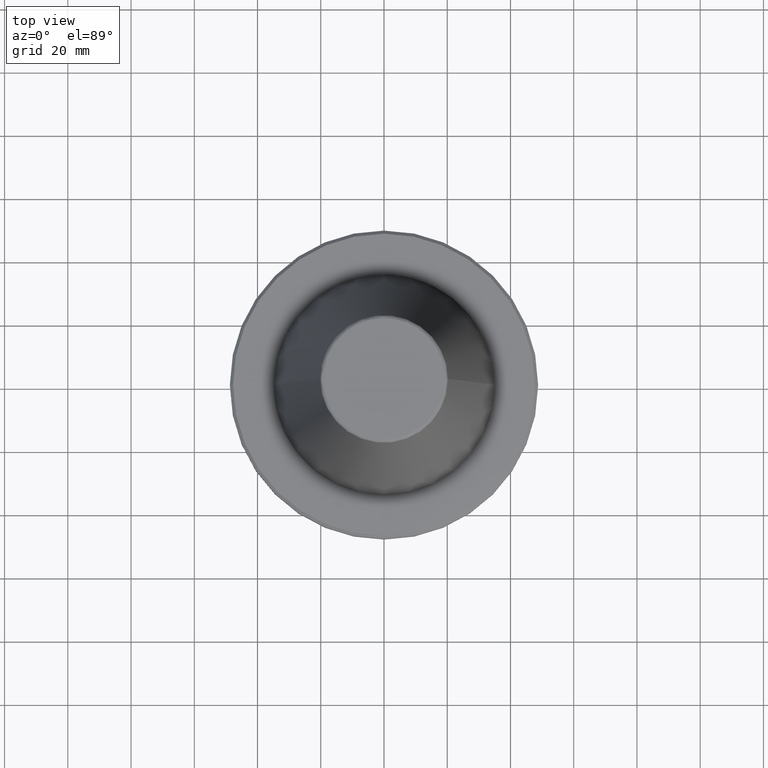
[diagram: clean part render]
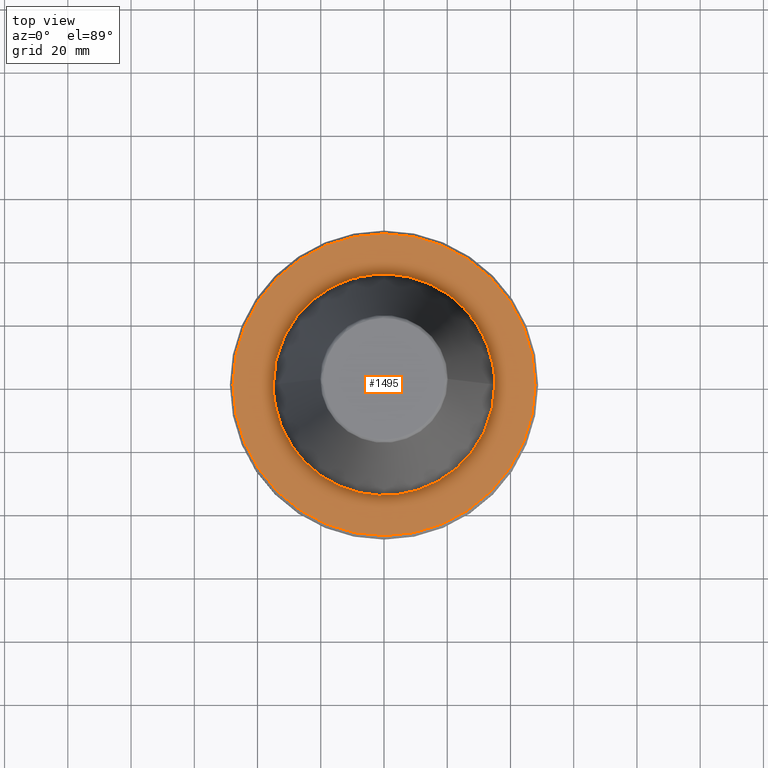
[diagram: same view with one face highlighted and labeled with its STEP entity id]
A machine part, top view. The second image highlights one B-rep face of the part: STEP entity #1495.
In plain terms, the highlighted planar face has unit normal (0, 0, 1).
Its self-contained STEP definition (entity closure, byte-faithful):
#79 = CARTESIAN_POINT ( 'NONE',  ( 32.56865578623111200, -12.81732741286599300, -3.199999999999999700 ) ) ;
#84 = CARTESIAN_POINT ( 'NONE',  ( -18.28000292855092800, -29.84963310932764500, -3.199999999999999700 ) ) ;
#86 = CARTESIAN_POINT ( 'NONE',  ( 29.33615436353597900, -19.08915049026279600, -3.200000000000001100 ) ) ;
#88 = CARTESIAN_POINT ( 'NONE',  ( -29.12859832660762600, -19.40440699317025200, -3.200000000000000600 ) ) ;
#91 = CARTESIAN_POINT ( 'NONE',  ( 13.83968161196028600, -32.14999761354120300, -3.200000000000000200 ) ) ;
#102 = CARTESIAN_POINT ( 'NONE',  ( -34.00795424931148100, -8.308886591280263200, -3.200000000000000600 ) ) ;
#104 = AXIS2_PLACEMENT_3D ( 'NONE', #472, #2318, #1406 ) ;
#106 = CARTESIAN_POINT ( 'NONE',  ( 6.856257133420490900, -34.32241613434766900, -3.199999999999999700 ) ) ;
#113 = EDGE_CURVE ( 'NONE', #2039, #1806, #1453, .T. ) ;
#116 = CARTESIAN_POINT ( 'NONE',  ( -6.333832670997710000, -34.42214089842946100, -3.200000000000000200 ) ) ;
#171 = CIRCLE ( 'NONE', #1088, 47.75000000000084600 ) ;
#189 = FACE_BOUND ( 'NONE', #862, .T. ) ;
#266 = CARTESIAN_POINT ( 'NONE',  ( 34.71393053172150900, -4.522777660849745200, -3.200000000000000600 ) ) ;
#270 = CARTESIAN_POINT ( 'NONE',  ( -9.135985986387860100, -33.82018250934229500, -3.199999999999999700 ) ) ;
#272 = CARTESIAN_POINT ( 'NONE',  ( 32.59456622067307300, -12.75129574512461700, -3.200000000000000600 ) ) ;
#279 = CARTESIAN_POINT ( 'NONE',  ( -17.39569460397837400, -30.38123465404614300, -3.200000000000000600 ) ) ;
#281 = CARTESIAN_POINT ( 'NONE',  ( 19.59265025307810100, -29.00292566127140100, -3.200000000000001100 ) ) ;
#289 = CARTESIAN_POINT ( 'NONE',  ( -29.25439692751874100, -19.21420423913502900, -3.200000000000000600 ) ) ;
#292 = CARTESIAN_POINT ( 'NONE',  ( 13.12353511134049100, -32.44661293862724700, -3.199999999999999700 ) ) ;
#296 = CARTESIAN_POINT ( 'NONE',  ( -34.22336994005453900, -7.342137192584755400, -3.200000000000000200 ) ) ;
#298 = CARTESIAN_POINT ( 'NONE',  ( 6.438461267130185700, -34.40272425953249800, -3.199999999999999700 ) ) ;
#330 = ORIENTED_EDGE ( 'NONE', *, *, #1492, .T. ) ;
#333 = AXIS2_PLACEMENT_3D ( 'NONE', #2123, #2312, #2349 ) ;
#341 = VERTEX_POINT ( 'NONE', #1487 ) ;
#438 = CARTESIAN_POINT ( 'NONE',  ( 34.45762826542811300, -6.138388980637482300, -3.200000000000000600 ) ) ;
#442 = FACE_OUTER_BOUND ( 'NONE', #1440, .T. ) ;
#445 = CARTESIAN_POINT ( 'NONE',  ( -11.02286519849236900, -33.22762448501621400, -3.200000000000000200 ) ) ;
#448 = CARTESIAN_POINT ( 'NONE',  ( 32.55619322207754600, -12.84895367128201500, -3.200000000000000200 ) ) ;
#453 = CARTESIAN_POINT ( 'NONE',  ( -19.08915049026184700, -29.33615436353641900, -3.200000000000000600 ) ) ;
#455 = CARTESIAN_POINT ( 'NONE',  ( 22.55445595765087700, -26.81177841650848100, -3.200000000000001500 ) ) ;
#463 = CARTESIAN_POINT ( 'NONE',  ( -31.73425127810394000, -14.78401017754392500, -3.200000000000000600 ) ) ;
#464 = CARTESIAN_POINT ( 'NONE',  ( 13.02066417721918300, -32.48790124032010600, -3.200000000000000600 ) ) ;
#472 = CARTESIAN_POINT ( 'NONE',  ( 0.0000000000000000000, 0.0000000000000000000, -3.200000000000000200 ) ) ;
#473 = CARTESIAN_POINT ( 'NONE',  ( -34.36977381871909600, -6.612690763914757900, -3.200000000000000600 ) ) ;
#478 = CARTESIAN_POINT ( 'NONE',  ( -1.070209459185427600, -35.00001621622374900, -3.200000000000001500 ) ) ;
#620 = CARTESIAN_POINT ( 'NONE',  ( 35.00000000000000000, 0.0000000000000000000, -3.200000000000000600 ) ) ;
#623 = CARTESIAN_POINT ( 'NONE',  ( 35.00000000000001400, 2.140949734381700300, -3.200000000000000600 ) ) ;
#624 = CARTESIAN_POINT ( 'NONE',  ( 34.80522929819336800, 4.263852012523358300, -3.200000000000000200 ) ) ;
#625 = CARTESIAN_POINT ( 'NONE',  ( 34.40960131014864500, 6.401595191017278800, -3.200000000000000600 ) ) ;
#628 = CARTESIAN_POINT ( 'NONE',  ( 34.40272425953227000, 6.438461267130299400, -3.199999999999999700 ) ) ;
#629 = CARTESIAN_POINT ( 'NONE',  ( 34.38960595214368300, 6.508170961267745200, -3.199999999999999300 ) ) ;
#633 = CARTESIAN_POINT ( 'NONE',  ( 34.36977381872005600, 6.612690763906142500, -3.200000000000000200 ) ) ;
#637 = CARTESIAN_POINT ( 'NONE',  ( 34.32241613434633400, 6.856257133421256500, -3.200000000000000200 ) ) ;
#638 = CARTESIAN_POINT ( 'NONE',  ( 34.22336994005794300, 7.342137192553624700, -3.200000000000000200 ) ) ;
#639 = CARTESIAN_POINT ( 'NONE',  ( 34.00795424931733600, 8.308886591226912100, -3.200000000000001100 ) ) ;
#640 = CARTESIAN_POINT ( 'NONE',  ( 33.50782965918070000, 10.22234251020762700, -3.199999999999999700 ) ) ;
#644 = CARTESIAN_POINT ( 'NONE',  ( 32.96036308136864100, 11.82808836356392300, -3.199999999999999700 ) ) ;
#647 = CARTESIAN_POINT ( 'NONE',  ( 32.52953514517933100, 12.91629066188748200, -3.200000000000001100 ) ) ;
#649 = CARTESIAN_POINT ( 'NONE',  ( 32.51532341133770400, 12.95202981245260600, -3.200000000000000600 ) ) ;
#650 = CARTESIAN_POINT ( 'NONE',  ( 34.42214089842926900, -6.333832670998722500, -3.199999999999999700 ) ) ;
#651 = CARTESIAN_POINT ( 'NONE',  ( 32.48790124032222300, 13.02066417721462900, -3.200000000000000200 ) ) ;
#652 = CARTESIAN_POINT ( 'NONE',  ( 32.44661293863091300, 13.12353511133261600, -3.200000000000000600 ) ) ;
#655 = CARTESIAN_POINT ( 'NONE',  ( 32.34918825184107000, 13.36300299976604200, -3.200000000000001100 ) ) ;
#657 = CARTESIAN_POINT ( 'NONE',  ( 32.14999761355444000, 13.83968161193186200, -3.200000000000000200 ) ) ;
#658 = CARTESIAN_POINT ( 'NONE',  ( -12.42068019836582900, -32.72251864197144000, -3.200000000000001500 ) ) ;
#659 = CARTESIAN_POINT ( 'NONE',  ( 31.73425127815324800, 14.78401017745958900, -3.199999999999999300 ) ) ;
#660 = CARTESIAN_POINT ( 'NONE',  ( 31.37487172763907900, -15.59116830087131700, -3.200000000000001100 ) ) ;
#661 = CARTESIAN_POINT ( 'NONE',  ( 30.83329837203913100, 16.63655267329933100, -3.200000000000000600 ) ) ;
#662 = CARTESIAN_POINT ( 'NONE',  ( 29.94197833483552200, 18.16253543793493800, -3.199999999999999300 ) ) ;
#663 = CARTESIAN_POINT ( 'NONE',  ( 29.25439692751638500, 19.21420423913906100, -3.200000000000000200 ) ) ;
#666 = CARTESIAN_POINT ( 'NONE',  ( 29.21200324985845900, 19.27860445471553800, -3.200000000000001100 ) ) ;
#667 = CARTESIAN_POINT ( 'NONE',  ( -19.02846970913748200, -29.37554792988932900, -3.199999999999998800 ) ) ;
#670 = CARTESIAN_POINT ( 'NONE',  ( 19.21420423913673800, -29.25439692751747200, -3.200000000000000600 ) ) ;
#671 = CARTESIAN_POINT ( 'NONE',  ( 29.12859832661076400, 19.40440699316710000, -3.200000000000000200 ) ) ;
#672 = CARTESIAN_POINT ( 'NONE',  ( 29.00292566128584700, 19.59265025306045900, -3.200000000000000200 ) ) ;
#674 = CARTESIAN_POINT ( 'NONE',  ( 28.70573247902078500, 20.02866069165706600, -3.200000000000000200 ) ) ;
#680 = CARTESIAN_POINT ( 'NONE',  ( -32.34918825182566600, -13.36300299979238400, -3.200000000000000200 ) ) ;
#682 = DIRECTION ( 'NONE',  ( -0.0000000000000000000, -0.0000000000000000000, 1.000000000000000000 ) ) ;
#684 = CARTESIAN_POINT ( 'NONE',  ( 12.91629066188754700, -32.52953514517923800, -3.200000000000000600 ) ) ;
#685 = CARTESIAN_POINT ( 'NONE',  ( 28.09551826179633900, 20.88778623089868700, -3.200000000000000200 ) ) ;
#686 = CARTESIAN_POINT ( 'NONE',  ( 26.81177841657013900, 22.55445595757559800, -3.200000000000000200 ) ) ;
#689 = CARTESIAN_POINT ( 'NONE',  ( 25.60289613075804000, 23.89460483448777900, -3.200000000000000200 ) ) ;
#693 = CARTESIAN_POINT ( 'NONE',  ( 23.04041976307144100, 26.45700235561194100, -3.199999999999999700 ) ) ;
#694 = CARTESIAN_POINT ( 'NONE',  ( -34.40272425953199300, -6.438461267132821900, -3.200000000000001100 ) ) ;
#696 = CARTESIAN_POINT ( 'NONE',  ( -4.522662636201488300, -34.71395181551518000, -3.200000000000000200 ) ) ;
#698 = CARTESIAN_POINT ( 'NONE',  ( 21.17444947147954100, 27.97287582435764400, -3.200000000000000600 ) ) ;
#701 = CARTESIAN_POINT ( 'NONE',  ( 19.08915049026126100, 29.33615436353701600, -3.199999999999999300 ) ) ;
#702 = CARTESIAN_POINT ( 'NONE',  ( 19.02846970913313700, 29.37554792989258000, -3.199999999999999700 ) ) ;
#704 = CARTESIAN_POINT ( 'NONE',  ( 18.90427742787639400, 29.45563184199051700, -3.200000000000000200 ) ) ;
#705 = CARTESIAN_POINT ( 'NONE',  ( 18.71766838408140600, 29.57513658499558300, -3.200000000000000600 ) ) ;
#706 = CARTESIAN_POINT ( 'NONE',  ( 18.28000292852387400, 29.84963310934783100, -3.200000000000000200 ) ) ;
#710 = CARTESIAN_POINT ( 'NONE',  ( 17.39569460393197900, 30.38123465408075700, -3.200000000000000200 ) ) ;
#712 = CARTESIAN_POINT ( 'NONE',  ( 15.59116830084095000, 31.37487172766022800, -3.199999999999999700 ) ) ;
#714 = CARTESIAN_POINT ( 'NONE',  ( 13.98287206292189900, 32.10730462063747100, -3.200000000000000600 ) ) ;
#715 = CARTESIAN_POINT ( 'NONE',  ( 12.84895367128254200, 32.55619322207718400, -3.200000000000000200 ) ) ;
#716 = CARTESIAN_POINT ( 'NONE',  ( 12.81732741286386600, 32.56865578623165900, -3.200000000000001100 ) ) ;
#721 = CARTESIAN_POINT ( 'NONE',  ( 12.75129574512042500, 32.59456622067411800, -3.200000000000000200 ) ) ;
#723 = CARTESIAN_POINT ( 'NONE',  ( 12.65220399756351800, 32.63327705773371400, -3.200000000000000200 ) ) ;
#725 = CARTESIAN_POINT ( 'NONE',  ( 12.42068019833845600, 32.72251864197743000, -3.200000000000000200 ) ) ;
#726 = CARTESIAN_POINT ( 'NONE',  ( 11.95639371351929900, 32.89666700154990800, -3.199999999999999700 ) ) ;
#732 = CARTESIAN_POINT ( 'NONE',  ( 11.02286519840483300, 33.22762448503527100, -3.200000000000000200 ) ) ;
#734 = CARTESIAN_POINT ( 'NONE',  ( 9.135985986271153400, 33.82018250936771200, -3.199999999999999700 ) ) ;
#735 = CARTESIAN_POINT ( 'NONE',  ( 7.484680064034233900, 34.20919177141554000, -3.199999999999999700 ) ) ;
#736 = CARTESIAN_POINT ( 'NONE',  ( 6.333832670999783000, 34.42214089842899900, -3.200000000000000600 ) ) ;
#738 = CARTESIAN_POINT ( 'NONE',  ( 6.302909256718462100, 34.42781451759762500, -3.199999999999999300 ) ) ;
#741 = CARTESIAN_POINT ( 'NONE',  ( 6.237098849441338200, 34.43979846253830600, -3.199999999999999700 ) ) ;
#745 = CARTESIAN_POINT ( 'NONE',  ( 6.138370408955123200, 34.45763170187248600, -3.200000000000000600 ) ) ;
#746 = CARTESIAN_POINT ( 'NONE',  ( 5.907914240827012400, 34.49824384711439500, -3.199999999999999700 ) ) ;
#750 = CARTESIAN_POINT ( 'NONE',  ( 5.446642676596225000, 34.57547315144680800, -3.200000000000000600 ) ) ;
#754 = CARTESIAN_POINT ( 'NONE',  ( 4.522662636236486100, 34.71395181550598600, -3.199999999999999300 ) ) ;
#758 = CARTESIAN_POINT ( 'NONE',  ( 2.668954907924300900, 34.92698936520180600, -3.199999999999999700 ) ) ;
#761 = CARTESIAN_POINT ( 'NONE',  ( 1.070209459212092300, 35.00001621621675700, -3.200000000000001100 ) ) ;
#763 = CARTESIAN_POINT ( 'NONE',  ( -2.140418918424168600, 34.99996756756655000, -3.200000000000000600 ) ) ;
#766 = CARTESIAN_POINT ( 'NONE',  ( -4.264027316417490000, 34.80519685506052200, -3.200000000000000200 ) ) ;
#767 = CARTESIAN_POINT ( 'NONE',  ( -6.401592451893932900, 34.40960181707260500, -3.199999999999999700 ) ) ;
#769 = CARTESIAN_POINT ( 'NONE',  ( -6.438461267135233300, 34.40272425953072900, -3.200000000000000200 ) ) ;
#773 = CARTESIAN_POINT ( 'NONE',  ( -6.508170961277508000, 34.38960595214063400, -3.199999999999999700 ) ) ;
#774 = CARTESIAN_POINT ( 'NONE',  ( -6.612690763923023200, 34.36977381871476900, -3.200000000000000200 ) ) ;
#775 = CARTESIAN_POINT ( 'NONE',  ( -6.856257133453938800, 34.32241613433611600, -3.200000000000001100 ) ) ;
#776 = CARTESIAN_POINT ( 'NONE',  ( -7.342137192614635500, 34.22336994003888600, -3.200000000000000200 ) ) ;
#777 = CARTESIAN_POINT ( 'NONE',  ( -8.308886591331488000, 34.00795424928465100, -3.200000000000000600 ) ) ;
#780 = CARTESIAN_POINT ( 'NONE',  ( -10.22234251034705100, 33.50782965913711600, -3.200000000000000200 ) ) ;
#784 = CARTESIAN_POINT ( 'NONE',  ( -11.82808836364358700, 32.96036308134373600, -3.199999999999999700 ) ) ;
#786 = CARTESIAN_POINT ( 'NONE',  ( -12.91629066188498200, 32.52953514518012000, -3.200000000000000200 ) ) ;
#787 = CARTESIAN_POINT ( 'NONE',  ( -12.95202981245626000, 32.51532341133582800, -3.199999999999999700 ) ) ;
#788 = CARTESIAN_POINT ( 'NONE',  ( -13.02066417722185500, 32.48790124031850700, -3.200000000000000200 ) ) ;
#791 = CARTESIAN_POINT ( 'NONE',  ( -13.12353511134512400, 32.44661293862448300, -3.200000000000000200 ) ) ;
#793 = CARTESIAN_POINT ( 'NONE',  ( -13.36300299979023100, 32.34918825182865700, -3.199999999999999700 ) ) ;
#795 = CARTESIAN_POINT ( 'NONE',  ( -13.83968161197703100, 32.14999761353126200, -3.200000000000000200 ) ) ;
#796 = EDGE_CURVE ( 'NONE', #341, #1755, #975, .T. ) ;
#797 = CARTESIAN_POINT ( 'NONE',  ( -14.78401017753703600, 31.73425127811351500, -3.200000000000001500 ) ) ;
#804 = CARTESIAN_POINT ( 'NONE',  ( -16.63655267340255200, 30.83329837198616000, -3.200000000000001100 ) ) ;
#810 = CARTESIAN_POINT ( 'NONE',  ( -18.16253543799391000, 29.94197833480527700, -3.200000000000000600 ) ) ;
#811 = CARTESIAN_POINT ( 'NONE',  ( -19.21420423913537700, 29.25439692751829300, -3.200000000000001100 ) ) ;
#814 = CARTESIAN_POINT ( 'NONE',  ( -19.27860445472269300, 29.21200324985276000, -3.200000000000000600 ) ) ;
#819 = CARTESIAN_POINT ( 'NONE',  ( -19.40440699318107300, 29.12859832659959000, -3.200000000000000200 ) ) ;
#821 = CARTESIAN_POINT ( 'NONE',  ( -19.59265025308431900, 29.00292566126676500, -3.199999999999999300 ) ) ;
#824 = CARTESIAN_POINT ( 'NONE',  ( -20.02866069170161700, 28.70573247898518700, -3.200000000000001100 ) ) ;
#827 = CARTESIAN_POINT ( 'NONE',  ( -20.88778623097507000, 28.09551826173528600, -3.200000000000001100 ) ) ;
#830 = CARTESIAN_POINT ( 'NONE',  ( -47.75000000000084600, 0.0000000000000000000, -3.199999999999869600 ) ) ;
#831 = CARTESIAN_POINT ( 'NONE',  ( -22.55445595767743000, 26.81177841648872800, -3.200000000000000200 ) ) ;
#835 = CARTESIAN_POINT ( 'NONE',  ( -23.89460483454596200, 25.60289613071151700, -3.199999999999999700 ) ) ;
#837 = CARTESIAN_POINT ( 'NONE',  ( -26.45700235549554300, 23.04041976316449700, -3.200000000000000200 ) ) ;
#838 = CARTESIAN_POINT ( 'NONE',  ( -27.97287582442092500, 21.17444947139290100, -3.200000000000000600 ) ) ;
#842 = CARTESIAN_POINT ( 'NONE',  ( -29.33615436353504800, 19.08915049026396100, -3.200000000000000200 ) ) ;
#844 = CARTESIAN_POINT ( 'NONE',  ( -29.37554792989231300, 19.02846970913294200, -3.200000000000000600 ) ) ;
#846 = CARTESIAN_POINT ( 'NONE',  ( -29.45563184198997300, 18.90427742787601100, -3.199999999999999700 ) ) ;
#848 = CARTESIAN_POINT ( 'NONE',  ( -29.57513658499466700, 18.71766838408074600, -3.200000000000000200 ) ) ;
#851 = CARTESIAN_POINT ( 'NONE',  ( -29.84963310934612200, 18.28000292852267300, -3.200000000000000200 ) ) ;
#854 = CARTESIAN_POINT ( 'NONE',  ( -30.38123465407781200, 17.39569460392992200, -3.199999999999998800 ) ) ;
#856 = CARTESIAN_POINT ( 'NONE',  ( -31.37487172765630900, 15.59116830083820700, -3.199999999999999700 ) ) ;
#860 = CARTESIAN_POINT ( 'NONE',  ( -32.10730462063523300, 13.98287206292032200, -3.200000000000000200 ) ) ;
#861 = CARTESIAN_POINT ( 'NONE',  ( -32.55619322207724100, 12.84895367128259600, -3.200000000000000200 ) ) ;
#862 = EDGE_LOOP ( 'NONE', ( #1525, #983 ) ) ;
#863 = CARTESIAN_POINT ( 'NONE',  ( -32.56865578623123300, 12.81732741286531400, -3.200000000000000200 ) ) ;
#866 = CARTESIAN_POINT ( 'NONE',  ( -32.59456622067332200, 12.75129574512329000, -3.200000000000000200 ) ) ;
#869 = CARTESIAN_POINT ( 'NONE',  ( -32.63327705773234300, 12.65220399756846900, -3.199999999999999700 ) ) ;
#871 = CARTESIAN_POINT ( 'NONE',  ( -32.72251864197475200, 12.42068019834804300, -3.200000000000000600 ) ) ;
#873 = CARTESIAN_POINT ( 'NONE',  ( -32.89666700154491300, 11.95639371353719200, -3.200000000000000200 ) ) ;
#874 = CARTESIAN_POINT ( 'NONE',  ( -33.22762448502673000, 11.02286519843548100, -3.199999999999999300 ) ) ;
#877 = CARTESIAN_POINT ( 'NONE',  ( 34.42781351200216000, -6.302914691289109900, -3.199999999999999300 ) ) ;
#878 = CARTESIAN_POINT ( 'NONE',  ( -33.82018250935632900, 9.135985986312031000, -3.200000000000000600 ) ) ;
#882 = CARTESIAN_POINT ( 'NONE',  ( -34.20919177140901000, 7.484680064057585900, -3.200000000000000200 ) ) ;
#885 = CARTESIAN_POINT ( 'NONE',  ( -34.42214089842920500, 6.333832670999061800, -3.199999999999999700 ) ) ;
#886 = CARTESIAN_POINT ( 'NONE',  ( -12.75129574512861600, -32.59456622067233400, -3.200000000000000200 ) ) ;
#888 = CARTESIAN_POINT ( 'NONE',  ( 29.84963310933858300, -18.28000292853714400, -3.200000000000000600 ) ) ;
#889 = CARTESIAN_POINT ( 'NONE',  ( -34.42781351200215300, 6.302914691289114300, -3.200000000000000200 ) ) ;
#890 = CARTESIAN_POINT ( 'NONE',  ( -34.43979647510159500, 6.237109590206945800, -3.200000000000001100 ) ) ;
#894 = CARTESIAN_POINT ( 'NONE',  ( -34.45762826542809200, 6.138388980637486700, -3.200000000000000600 ) ) ;
#898 = CARTESIAN_POINT ( 'NONE',  ( -26.81177841654718800, -22.55445595759855200, -3.200000000000001100 ) ) ;
#899 = CARTESIAN_POINT ( 'NONE',  ( -34.49823719593175000, 5.907950186018663200, -3.200000000000000600 ) ) ;
#901 = CARTESIAN_POINT ( 'NONE',  ( 19.27860445472082400, -29.21200324985414900, -3.200000000000002000 ) ) ;
#903 = CARTESIAN_POINT ( 'NONE',  ( -34.57546073590584300, 5.446709774287301200, -3.199999999999999700 ) ) ;
#906 = CARTESIAN_POINT ( 'NONE',  ( -34.71393053172149500, 4.522777660849747000, -3.199999999999999700 ) ) ;
#909 = CARTESIAN_POINT ( 'NONE',  ( -32.14999761352568400, -13.83968161198105500, -3.199999999999999700 ) ) ;
#910 = CARTESIAN_POINT ( 'NONE',  ( -34.92696098682252200, 2.669108274075320700, -3.200000000000000200 ) ) ;
#912 = CARTESIAN_POINT ( 'NONE',  ( 6.508170961267519600, -34.38960595214408000, -3.200000000000000200 ) ) ;
#917 = CARTESIAN_POINT ( 'NONE',  ( -34.80522929819336000, -4.263852012492216100, -3.199999999999999700 ) ) ;
#918 = CARTESIAN_POINT ( 'NONE',  ( -35.00000000000000000, 4.286263797015737300E-015, -3.200000000000000600 ) ) ;
#921 = CARTESIAN_POINT ( 'NONE',  ( -5.907914240816079900, -34.49824384711726600, -3.199999999999999700 ) ) ;
#947 = CARTESIAN_POINT ( 'NONE',  ( -35.00000000000001400, 1.070297097012678800, -3.200000000000000600 ) ) ;
#949 = PLANE ( 'NONE',  #104 ) ;
#975 = B_SPLINE_CURVE_WITH_KNOTS ( 'NONE', 3,
 ( #918, #947, #910, #906, #903, #899, #894, #890, #889, #885, #882, #878, #874, #873, #871, #869, #866, #863, #861, #860, #856, #854, #851, #848, #846, #844, #842, #838, #837, #835, #831, #827, #824, #821, #819, #814, #811, #810, #804, #797, #795, #793, #791, #788, #787, #786, #784, #780, #777, #776, #775, #774, #773, #769, #767, #766, #763, #761, #758, #754, #750, #746, #745, #741, #738, #736, #735, #734, #732, #726, #725, #723, #721, #716, #715, #714, #712, #710, #706, #705, #704, #702, #701, #698, #693, #689, #686, #685, #674, #672, #671, #666, #663, #662, #661, #659, #657, #655, #652, #651, #649, #647, #644, #640, #639, #638, #637, #633, #629, #628, #625, #624, #623, #620 ),
 .UNSPECIFIED., .F., .F.,
 ( 4, 1, 1, 1, 1, 1, 2, 2, 1, 1, 1, 1, 1, 2, 2, 1, 1, 1, 1, 2, 2, 2, 1, 1, 1, 1, 2, 2, 1, 1, 1, 1, 1, 2, 2, 1, 1, 1, 1, 1, 2, 2, 2, 1, 1, 1, 1, 1, 2, 2, 1, 1, 1, 1, 1, 2, 2, 1, 1, 1, 1, 2, 2, 2, 1, 1, 1, 1, 2, 2, 1, 1, 1, 1, 1, 2, 2, 1, 1, 1, 1, 1, 2, 2, 4 ),
 ( 0.0000000000000000000, 0.03124999999999877200, 0.04687499999999816100, 0.05468749999999786300, 0.05859374999999769600, 0.06054687499999759900, 0.06152343749999752300, 0.06249999999999744000, 0.09374999999999490700, 0.1093749999999936000, 0.1171874999999929600, 0.1210937499999926600, 0.1230468749999925300, 0.1240234374999925100, 0.1249999999999924800, 0.1562499999999923900, 0.1718749999999923100, 0.1796874999999922600, 0.1835937499999922000, 0.1855468749999921500, 0.1874999999999921200, 0.2499999999999907300, 0.2812499999999900600, 0.2968749999999897300, 0.3046874999999895600, 0.3085937499999895600, 0.3105468749999895600, 0.3124999999999896200, 0.3437499999999892300, 0.3593749999999890600, 0.3671874999999890100, 0.3710937499999889500, 0.3730468749999889500, 0.3740234374999889500, 0.3749999999999889500, 0.4062499999999907900, 0.4218749999999916700, 0.4296874999999921200, 0.4335937499999923400, 0.4355468749999924500, 0.4365234374999925100, 0.4374999999999925600, 0.4999999999999948900, 0.5312499999999961100, 0.5468749999999966700, 0.5546874999999970000, 0.5585937499999971100, 0.5605468749999972200, 0.5615234374999971100, 0.5624999999999971100, 0.5937499999999980000, 0.6093749999999983300, 0.6171874999999986700, 0.6210937499999986700, 0.6230468749999986700, 0.6240234374999987800, 0.6249999999999988900, 0.6562499999999993300, 0.6718749999999995600, 0.6796874999999995600, 0.6835937499999996700, 0.6855468749999996700, 0.6874999999999997800, 0.7500000000000016700, 0.7812500000000026600, 0.7968750000000032200, 0.8046875000000034400, 0.8085937500000036600, 0.8105468750000036600, 0.8125000000000036600, 0.8437500000000036600, 0.8593750000000037700, 0.8671875000000037700, 0.8710937500000038900, 0.8730468750000037700, 0.8740234375000037700, 0.8750000000000036600, 0.9062500000000028900, 0.9218750000000024400, 0.9296875000000022200, 0.9335937500000021100, 0.9355468750000020000, 0.9365234375000018900, 0.9375000000000018900, 1.000000000000000000 ),
 .UNSPECIFIED. ) ;
#983 = ORIENTED_EDGE ( 'NONE', *, *, #2286, .T. ) ;
#1045 = CARTESIAN_POINT ( 'NONE',  ( 47.75000000000084600, 5.908920805886082900E-015, -3.199999999999869600 ) ) ;
#1075 = CARTESIAN_POINT ( 'NONE',  ( 34.20919177140704200, -7.484680064068328400, -3.200000000000001100 ) ) ;
#1080 = CARTESIAN_POINT ( 'NONE',  ( -13.98287206295725200, -32.10730462061110300, -3.200000000000000200 ) ) ;
#1085 = CARTESIAN_POINT ( 'NONE',  ( 29.37554792989109500, -19.02846970913526900, -3.200000000000000600 ) ) ;
#1087 = CARTESIAN_POINT ( 'NONE',  ( -28.09551826177911600, -20.88778623091590700, -3.200000000000000600 ) ) ;
#1088 = AXIS2_PLACEMENT_3D ( 'NONE', #1796, #682, #2036 ) ;
#1090 = CARTESIAN_POINT ( 'NONE',  ( 18.16253543797202500, -29.94197833481824500, -3.200000000000000600 ) ) ;
#1102 = CARTESIAN_POINT ( 'NONE',  ( -32.52953514517947300, -12.91629066188620600, -3.200000000000001500 ) ) ;
#1105 = CARTESIAN_POINT ( 'NONE',  ( 7.342137192552193000, -34.22336994006042900, -3.199999999999999700 ) ) ;
#1115 = CARTESIAN_POINT ( 'NONE',  ( -6.138370408949490400, -34.45763170187397900, -3.200000000000000600 ) ) ;
#1219 = B_SPLINE_CURVE_WITH_KNOTS ( 'NONE', 3,
 ( #1644, #1815, #1462, #266, #1654, #1831, #438, #1997, #877, #650, #1075, #2275, #1471, #1262, #2141, #1662, #272, #79, #448, #1837, #660, #2006, #888, #2143, #2282, #1085, #86, #1480, #1271, #1671, #455, #2014, #1847, #281, #2151, #901, #670, #1090, #2294, #1281, #91, #1486, #292, #464, #1681, #684, #2020, #1858, #2156, #1105, #106, #2301, #912, #298, #1496, #1291, #1688, #478, #1866, #696, #2026, #921, #1115, #2165, #1299, #116, #2310, #270, #445, #1835, #658, #2004, #886, #2142, #1268, #1080, #2279, #279, #84, #1477, #1667, #667, #453, #1843, #2149, #2012, #898, #1087, #2291, #1277, #88, #1485, #289, #1853, #1679, #463, #909, #680, #2018, #2298, #2153, #1102, #1494, #1289, #102, #296, #1685, #473, #1864, #694, #2024, #917, #2309, #2164 ),
 .UNSPECIFIED., .F., .F.,
 ( 4, 1, 1, 1, 1, 1, 2, 2, 1, 1, 1, 1, 1, 2, 2, 1, 1, 1, 1, 2, 2, 2, 1, 1, 1, 1, 2, 2, 1, 1, 1, 1, 1, 2, 2, 1, 1, 1, 1, 1, 2, 2, 2, 1, 1, 1, 1, 1, 2, 2, 1, 1, 1, 1, 1, 2, 2, 1, 1, 1, 1, 2, 2, 2, 1, 1, 1, 1, 2, 2, 1, 1, 1, 1, 1, 2, 2, 1, 1, 1, 1, 1, 2, 2, 4 ),
 ( 0.0000000000000000000, 0.03124999999999995100, 0.04687499999999993100, 0.05468749999999993100, 0.05859374999999991000, 0.06054687499999991000, 0.06152343749999988200, 0.06249999999999985400, 0.09374999999999808500, 0.1093749999999971400, 0.1171874999999966800, 0.1210937499999964600, 0.1230468749999963800, 0.1240234374999963800, 0.1249999999999963800, 0.1562499999999951400, 0.1718749999999945000, 0.1796874999999942300, 0.1835937499999940600, 0.1855468749999939500, 0.1874999999999938400, 0.2499999999999893400, 0.2812499999999871200, 0.2968749999999860100, 0.3046874999999854000, 0.3085937499999851200, 0.3105468749999850100, 0.3124999999999849000, 0.3437499999999827400, 0.3593749999999816300, 0.3671874999999811300, 0.3710937499999808500, 0.3730468749999806300, 0.3740234374999805700, 0.3749999999999805200, 0.4062499999999794100, 0.4218749999999788500, 0.4296874999999785700, 0.4335937499999784600, 0.4355468749999784100, 0.4365234374999784100, 0.4374999999999784100, 0.4999999999999781300, 0.5312499999999780200, 0.5468749999999779100, 0.5546874999999779100, 0.5585937499999779100, 0.5605468749999779100, 0.5615234374999779100, 0.5624999999999779100, 0.5937499999999764600, 0.6093749999999755800, 0.6171874999999752400, 0.6210937499999750200, 0.6230468749999749100, 0.6240234374999749100, 0.6249999999999749100, 0.6562499999999756900, 0.6718749999999761300, 0.6796874999999762400, 0.6835937499999764600, 0.6855468749999765700, 0.6874999999999766900, 0.7499999999999799000, 0.7812499999999814600, 0.7968749999999823500, 0.8046874999999827900, 0.8085937499999830100, 0.8105468749999831200, 0.8124999999999832400, 0.8437499999999857900, 0.8593749999999871200, 0.8671874999999877900, 0.8710937499999881200, 0.8730468749999883400, 0.8740234374999884500, 0.8749999999999885600, 0.9062499999999917800, 0.9218749999999934500, 0.9296874999999942300, 0.9335937499999946700, 0.9355468749999948900, 0.9365234374999950000, 0.9374999999999951200, 1.000000000000000000 ),
 .UNSPECIFIED. ) ;
#1262 = CARTESIAN_POINT ( 'NONE',  ( 32.89666700154338500, -11.95639371354541900, -3.200000000000000600 ) ) ;
#1268 = CARTESIAN_POINT ( 'NONE',  ( -12.84895367128145700, -32.55619322207798700, -3.200000000000000200 ) ) ;
#1271 = CARTESIAN_POINT ( 'NONE',  ( 26.45700235552588400, -23.04041976314191200, -3.199999999999999300 ) ) ;
#1277 = CARTESIAN_POINT ( 'NONE',  ( -29.00292566128046800, -19.59265025306582700, -3.200000000000000600 ) ) ;
#1281 = CARTESIAN_POINT ( 'NONE',  ( 14.78401017750829600, -31.73425127813054300, -3.199999999999999700 ) ) ;
#1289 = CARTESIAN_POINT ( 'NONE',  ( -33.50782965917290600, -10.22234251027873800, -3.199999999999999700 ) ) ;
#1291 = CARTESIAN_POINT ( 'NONE',  ( 4.264027316360163400, -34.80519685504652500, -3.200000000000000200 ) ) ;
#1299 = CARTESIAN_POINT ( 'NONE',  ( -6.302909256716819900, -34.42781451759805800, -3.199999999999999300 ) ) ;
#1406 = DIRECTION ( 'NONE',  ( 1.000000000000000000, 0.0000000000000000000, -0.0000000000000000000 ) ) ;
#1440 = EDGE_LOOP ( 'NONE', ( #2091, #330 ) ) ;
#1453 = CIRCLE ( 'NONE', #333, 47.75000000000084600 ) ;
#1462 = CARTESIAN_POINT ( 'NONE',  ( 34.92696098682253600, -2.669108274075315400, -3.200000000000001100 ) ) ;
#1471 = CARTESIAN_POINT ( 'NONE',  ( 33.22762448502411600, -11.02286519844958000, -3.200000000000000200 ) ) ;
#1477 = CARTESIAN_POINT ( 'NONE',  ( -18.71766838409589400, -29.57513658498475500, -3.200000000000000600 ) ) ;
#1480 = CARTESIAN_POINT ( 'NONE',  ( 27.97287582439135500, -21.17444947143025800, -3.200000000000000200 ) ) ;
#1485 = CARTESIAN_POINT ( 'NONE',  ( -29.21200324985685300, -19.27860445471714700, -3.200000000000000600 ) ) ;
#1486 = CARTESIAN_POINT ( 'NONE',  ( 13.36300299978126000, -32.34918825183396500, -3.200000000000000600 ) ) ;
#1487 = CARTESIAN_POINT ( 'NONE',  ( -35.00000000000000000, 4.286263797015737300E-015, -3.200000000000000600 ) ) ;
#1492 = EDGE_CURVE ( 'NONE', #1806, #2039, #171, .T. ) ;
#1494 = CARTESIAN_POINT ( 'NONE',  ( -32.96036308136418600, -11.82808836360453800, -3.200000000000000600 ) ) ;
#1495 = ADVANCED_FACE ( 'NONE', ( #189, #442 ), #949, .T. ) ;
#1496 = CARTESIAN_POINT ( 'NONE',  ( 6.401592451894831700, -34.40960181707281900, -3.199999999999999700 ) ) ;
#1525 = ORIENTED_EDGE ( 'NONE', *, *, #796, .T. ) ;
#1644 = CARTESIAN_POINT ( 'NONE',  ( 35.00000000000000000, 0.0000000000000000000, -3.200000000000000600 ) ) ;
#1654 = CARTESIAN_POINT ( 'NONE',  ( 34.57546073590583500, -5.446709774287297600, -3.200000000000000200 ) ) ;
#1662 = CARTESIAN_POINT ( 'NONE',  ( 32.63327705773191000, -12.65220399757075000, -3.199999999999999700 ) ) ;
#1667 = CARTESIAN_POINT ( 'NONE',  ( -18.90427742788488900, -29.45563184198417900, -3.200000000000000600 ) ) ;
#1671 = CARTESIAN_POINT ( 'NONE',  ( 23.89460483453078900, -25.60289613072279000, -3.200000000000000200 ) ) ;
#1679 = CARTESIAN_POINT ( 'NONE',  ( -30.83329837197338800, -16.63655267341178100, -3.200000000000001500 ) ) ;
#1681 = CARTESIAN_POINT ( 'NONE',  ( 12.95202981245491700, -32.51532341133663100, -3.200000000000000600 ) ) ;
#1685 = CARTESIAN_POINT ( 'NONE',  ( -34.32241613434451500, -6.856257133437938300, -3.200000000000000200 ) ) ;
#1688 = CARTESIAN_POINT ( 'NONE',  ( 2.140418918370826000, -34.99996756755254500, -3.199999999999999700 ) ) ;
#1755 = VERTEX_POINT ( 'NONE', #1760 ) ;
#1760 = CARTESIAN_POINT ( 'NONE',  ( 35.00000000000000000, 0.0000000000000000000, -3.200000000000000600 ) ) ;
#1796 = CARTESIAN_POINT ( 'NONE',  ( 0.0000000000000000000, 0.0000000000000000000, -3.199999999999869600 ) ) ;
#1806 = VERTEX_POINT ( 'NONE', #1045 ) ;
#1815 = CARTESIAN_POINT ( 'NONE',  ( 35.00000000000002800, -1.070297097012675100, -3.200000000000002000 ) ) ;
#1831 = CARTESIAN_POINT ( 'NONE',  ( 34.49823719593174300, -5.907950186018658700, -3.199999999999999700 ) ) ;
#1835 = CARTESIAN_POINT ( 'NONE',  ( -11.95639371357037600, -32.89666700153875900, -3.200000000000000600 ) ) ;
#1837 = CARTESIAN_POINT ( 'NONE',  ( 32.10730462062537800, -13.98287206293925200, -3.200000000000001500 ) ) ;
#1843 = CARTESIAN_POINT ( 'NONE',  ( -21.17444947146037700, -27.97287582437680700, -3.199999999999999700 ) ) ;
#1847 = CARTESIAN_POINT ( 'NONE',  ( 20.02866069168999600, -28.70573247899380900, -3.199999999999999700 ) ) ;
#1853 = CARTESIAN_POINT ( 'NONE',  ( -29.94197833479797300, -18.16253543799919300, -3.200000000000000600 ) ) ;
#1858 = CARTESIAN_POINT ( 'NONE',  ( 10.22234251020434000, -33.50782965918637800, -3.200000000000001100 ) ) ;
#1864 = CARTESIAN_POINT ( 'NONE',  ( -34.38960595214313500, -6.508170961272730500, -3.200000000000000600 ) ) ;
#1866 = CARTESIAN_POINT ( 'NONE',  ( -2.668954907877634200, -34.92698936521405500, -3.200000000000001500 ) ) ;
#1997 = CARTESIAN_POINT ( 'NONE',  ( 34.43979647510158800, -6.237109590206941300, -3.200000000000000200 ) ) ;
#2004 = CARTESIAN_POINT ( 'NONE',  ( -12.65220399757766000, -32.63327705773065200, -3.199999999999999300 ) ) ;
#2006 = CARTESIAN_POINT ( 'NONE',  ( 30.38123465406488000, -17.39569460395474100, -3.199999999999999700 ) ) ;
#2012 = CARTESIAN_POINT ( 'NONE',  ( -25.60289613074492700, -23.89460483450089300, -3.200000000000001100 ) ) ;
#2014 = CARTESIAN_POINT ( 'NONE',  ( 20.88778623095515000, -28.09551826175010400, -3.200000000000001100 ) ) ;
#2018 = CARTESIAN_POINT ( 'NONE',  ( -32.44661293862293400, -13.12353511134623600, -3.200000000000000600 ) ) ;
#2020 = CARTESIAN_POINT ( 'NONE',  ( 11.82808836356204400, -32.96036308137187400, -3.200000000000000600 ) ) ;
#2024 = CARTESIAN_POINT ( 'NONE',  ( -34.40960131014864500, -6.401595191017770000, -3.200000000000000600 ) ) ;
#2026 = CARTESIAN_POINT ( 'NONE',  ( -5.446642676575814700, -34.57547315145217200, -3.199999999999999700 ) ) ;
#2036 = DIRECTION ( 'NONE',  ( 1.000000000000000000, 0.0000000000000000000, 0.0000000000000000000 ) ) ;
#2039 = VERTEX_POINT ( 'NONE', #830 ) ;
#2091 = ORIENTED_EDGE ( 'NONE', *, *, #113, .T. ) ;
#2123 = CARTESIAN_POINT ( 'NONE',  ( 0.0000000000000000000, 0.0000000000000000000, -3.199999999999869600 ) ) ;
#2141 = CARTESIAN_POINT ( 'NONE',  ( 32.72251864197390600, -12.42068019835245400, -3.199999999999999700 ) ) ;
#2142 = CARTESIAN_POINT ( 'NONE',  ( -12.81732741286802100, -32.56865578623072800, -3.200000000000000600 ) ) ;
#2143 = CARTESIAN_POINT ( 'NONE',  ( 29.57513658499063400, -18.71766838408851200, -3.200000000000000200 ) ) ;
#2149 = CARTESIAN_POINT ( 'NONE',  ( -23.04041976309767400, -26.45700235558571100, -3.199999999999999700 ) ) ;
#2151 = CARTESIAN_POINT ( 'NONE',  ( 19.40440699317742800, -29.12859832660231500, -3.200000000000001100 ) ) ;
#2153 = CARTESIAN_POINT ( 'NONE',  ( -32.51532341133536600, -12.95202981245658700, -3.200000000000000200 ) ) ;
#2156 = CARTESIAN_POINT ( 'NONE',  ( 8.308886591224443000, -34.00795424932159200, -3.199999999999999700 ) ) ;
#2164 = CARTESIAN_POINT ( 'NONE',  ( -35.00000000000000000, 4.286263797015737300E-015, -3.200000000000000600 ) ) ;
#2165 = CARTESIAN_POINT ( 'NONE',  ( -6.237098849438081200, -34.43979846253916600, -3.200000000000000200 ) ) ;
#2275 = CARTESIAN_POINT ( 'NONE',  ( 33.82018250935284000, -9.135985986330826600, -3.199999999999999700 ) ) ;
#2279 = CARTESIAN_POINT ( 'NONE',  ( -15.59116830090281700, -31.37487172761408500, -3.200000000000001500 ) ) ;
#2282 = CARTESIAN_POINT ( 'NONE',  ( 29.45563184198762100, -18.90427742788056500, -3.200000000000000600 ) ) ;
#2286 = EDGE_CURVE ( 'NONE', #1755, #341, #1219, .T. ) ;
#2291 = CARTESIAN_POINT ( 'NONE',  ( -28.70573247901074200, -20.02866069166710600, -3.200000000000001100 ) ) ;
#2294 = CARTESIAN_POINT ( 'NONE',  ( 16.63655267336425700, -30.83329837200888000, -3.200000000000001500 ) ) ;
#2298 = CARTESIAN_POINT ( 'NONE',  ( -32.48790124031761900, -13.02066417722249800, -3.200000000000001100 ) ) ;
#2301 = CARTESIAN_POINT ( 'NONE',  ( 6.612690763905746400, -34.36977381872073800, -3.200000000000001100 ) ) ;
#2309 = CARTESIAN_POINT ( 'NONE',  ( -35.00000000000000000, -2.140949734350461300, -3.199999999999999300 ) ) ;
#2310 = CARTESIAN_POINT ( 'NONE',  ( -7.484680064100915700, -34.20919177140100200, -3.200000000000000600 ) ) ;
#2312 = DIRECTION ( 'NONE',  ( -0.0000000000000000000, -0.0000000000000000000, 1.000000000000000000 ) ) ;
#2318 = DIRECTION ( 'NONE',  ( 0.0000000000000000000, 0.0000000000000000000, 1.000000000000000000 ) ) ;
#2349 = DIRECTION ( 'NONE',  ( 1.000000000000000000, 0.0000000000000000000, 0.0000000000000000000 ) ) ;